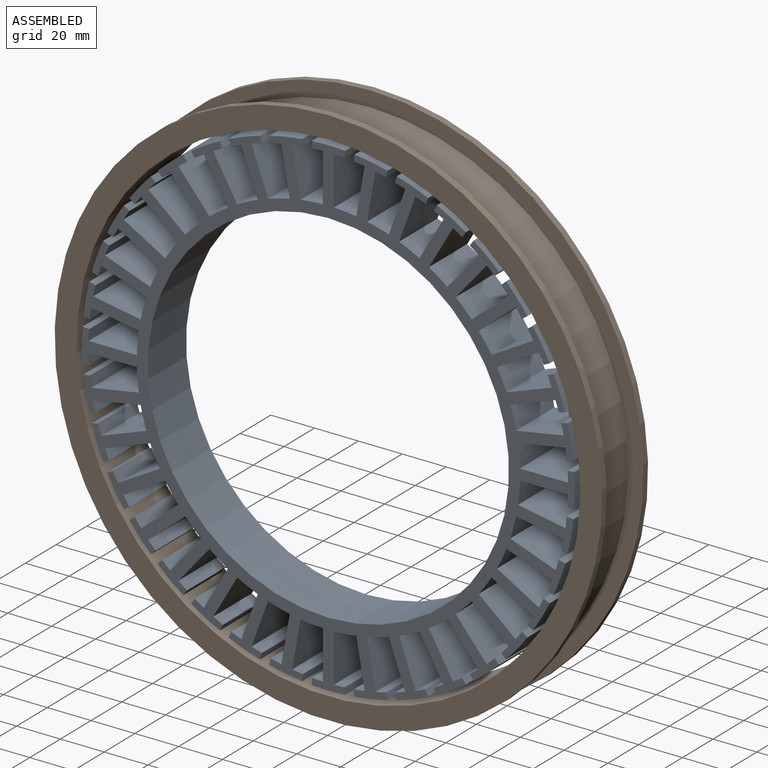
[diagram: assembled view]
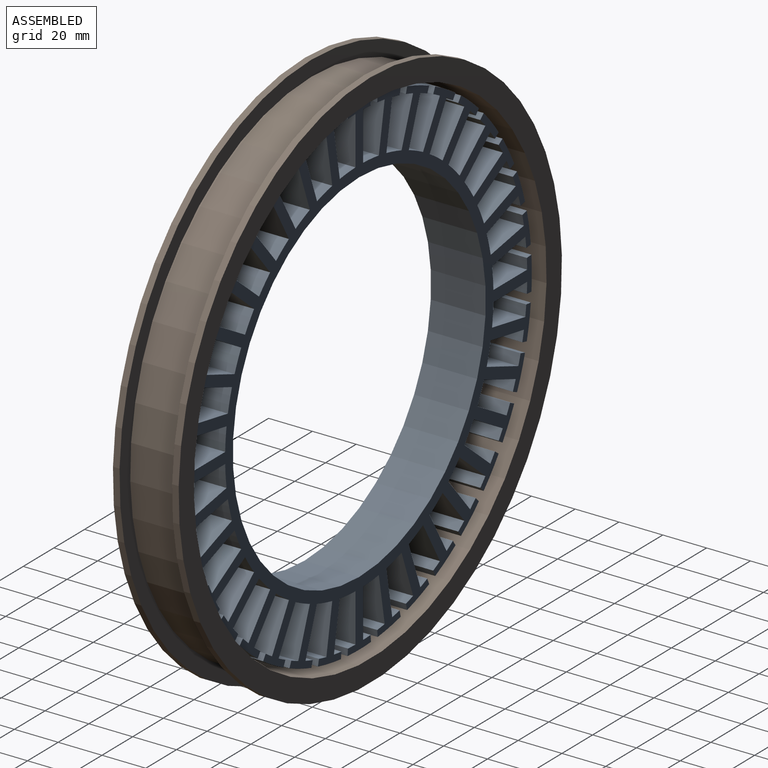
[diagram: assembled view, second angle]
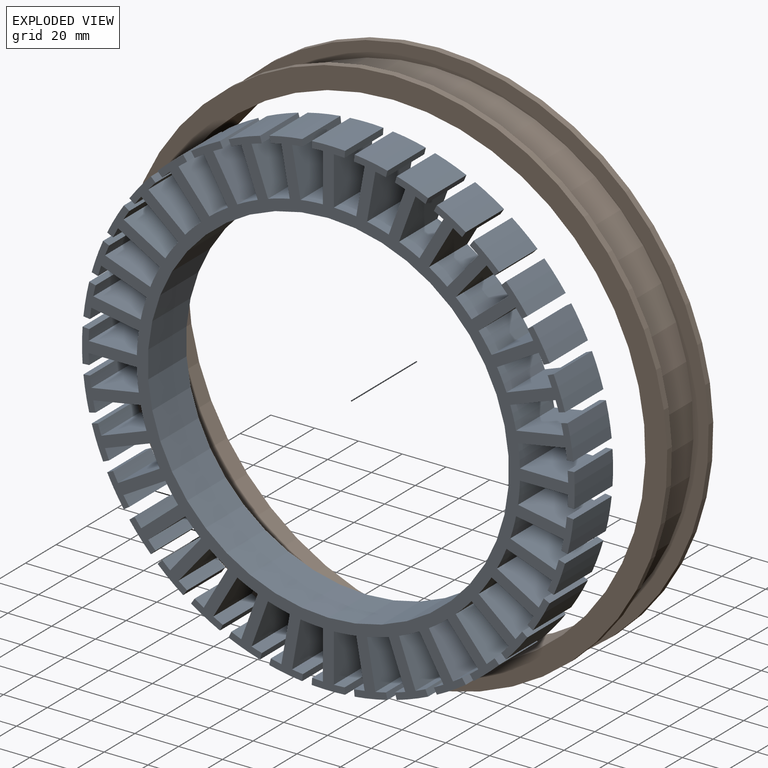
[diagram: exploded view]
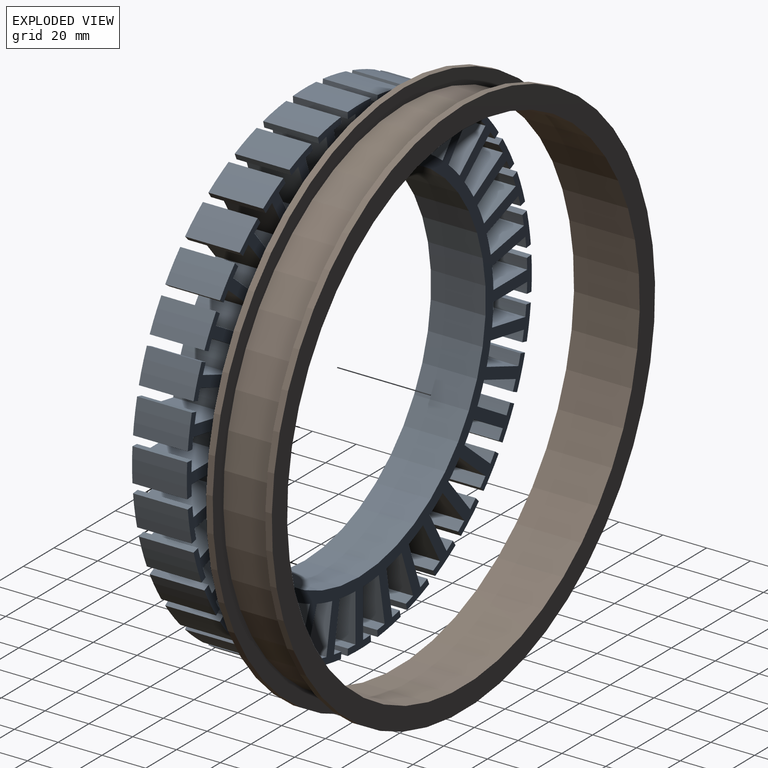
[diagram: exploded view, second angle]
ASSEMBLY  parts=2 mates=2
PART A: 291 faces, bbox 225x25x225 mm
  f0: cylinder r=87.5mm len=25mm, axis (0,1,0), area 256.8mm2, adj f1,f10,f11,f290
  f1: plane 25x22.01mm, normal (1,0,0), area 550.2mm2, adj f0,f2,f10,f11
  f2: cylinder r=109.5mm len=25mm, axis (0,1,0), area 123.2mm2, adj f1,f3,f10,f11
  f3: plane 25x2.99mm, normal (1,0,-0.07), area 75mm2, adj f2,f4,f10,f11
  f4: cylinder r=112.5mm len=25mm, axis (0,1,0), area 381.6mm2, adj f3,f5,f10,f11
  f5: plane 25x2.99mm, normal (-1,0,-0.07), area 75mm2, adj f4,f6,f10,f11
  f6: cylinder r=109.5mm len=25mm, axis (0,1,0), area 123.2mm2, adj f5,f7,f10,f11
  f7: plane 25x22.01mm, normal (-1,0,0), area 550.2mm2, adj f6,f8,f10,f11
  f8: cylinder r=87.5mm len=25mm, axis (0,1,0), area 256.8mm2, adj f7,f10,f11,f12
  f9: cylinder r=82.5mm len=165mm, axis (0,1,0), area 12959.1mm2, adj f10,f11
  f10: plane 225x225mm, normal (0,-1,0), area 8257.3mm2, adj f0,f1,f2,f3,f4,f5,f6,f7
  f11: plane 225x225mm, normal (0,1,0), area 8257.3mm2, adj f0,f1,f2,f3,f4,f5,f6,f7
  f12: plane 25x21.67mm, normal (0.98,0,0.17), area 550.2mm2, adj f8,f10,f11,f13
  f13: cylinder r=109.5mm len=25mm, axis (0,1,0), area 123.2mm2, adj f10,f11,f12,f14
  f14: plane 25x2.98mm, normal (0.99,0,0.11), area 75mm2, adj f10,f11,f13,f15
  f15: cylinder r=112.5mm len=25mm, axis (0,1,0), area 381.6mm2, adj f10,f11,f14,f16
  f16: plane 25x2.91mm, normal (-0.97,0,-0.24), area 75mm2, adj f10,f11,f15,f17
  f17: cylinder r=109.5mm len=25mm, axis (0,1,0), area 123.2mm2, adj f10,f11,f16,f18
  f18: plane 25x21.67mm, normal (-0.98,0,-0.17), area 550.2mm2, adj f10,f11,f17,f19
  f19: cylinder r=87.5mm len=25mm, axis (0,1,0), area 256.8mm2, adj f10,f11,f18,f20
  f20: plane 25x20.68mm, normal (0.94,0,0.34), area 550.2mm2, adj f10,f11,f19,f21
  f21: cylinder r=109.5mm len=25mm, axis (0,1,0), area 123.2mm2, adj f10,f11,f20,f22
  f22: plane 25x2.88mm, normal (0.96,0,0.28), area 75mm2, adj f10,f11,f21,f23
  f23: cylinder r=112.5mm len=25mm, axis (0,1,0), area 381.6mm2, adj f10,f11,f22,f24
  f24: plane 25x2.74mm, normal (-0.91,0,-0.4), area 75mm2, adj f10,f11,f23,f25
  f25: cylinder r=109.5mm len=25mm, axis (0,1,0), area 123.2mm2, adj f10,f11,f24,f26
  f26: plane 25x20.68mm, normal (-0.94,0,-0.34), area 550.2mm2, adj f10,f11,f25,f27
  f27: cylinder r=87.5mm len=25mm, axis (0,1,0), area 256.8mm2, adj f10,f11,f26,f28
  f28: plane 25x19.06mm, normal (0.87,0,0.5), area 550.2mm2, adj f10,f11,f27,f29
  f29: cylinder r=109.5mm len=25mm, axis (0,1,0), area 123.2mm2, adj f10,f11,f28,f30
  f30: plane 25x2.69mm, normal (0.9,0,0.44), area 75mm2, adj f10,f11,f29,f31
  f31: cylinder r=112.5mm len=25mm, axis (0,1,0), area 381.6mm2, adj f10,f11,f30,f32
  f32: plane 25x2.49mm, normal (-0.83,0,-0.56), area 75mm2, adj f10,f11,f31,f33
  f33: cylinder r=109.5mm len=25mm, axis (0,1,0), area 123.2mm2, adj f10,f11,f32,f34
  f34: plane 25x19.06mm, normal (-0.87,0,-0.5), area 550.2mm2, adj f10,f11,f33,f35
  f35: cylinder r=87.5mm len=25mm, axis (0,1,0), area 256.8mm2, adj f10,f11,f34,f36
  f36: plane 25x16.86mm, normal (0.77,0,0.64), area 550.2mm2, adj f10,f11,f35,f37
  f37: cylinder r=109.5mm len=25mm, axis (0,1,0), area 123.2mm2, adj f10,f11,f36,f38
  f38: plane 25x2.42mm, normal (0.81,0,0.59), area 75mm2, adj f10,f11,f37,f39
  f39: cylinder r=112.5mm len=25mm, axis (0,1,0), area 381.6mm2, adj f10,f11,f38,f40
  f40: plane 25x2.16mm, normal (-0.72,0,-0.69), area 75mm2, adj f10,f11,f39,f41
  f41: cylinder r=109.5mm len=25mm, axis (0,1,0), area 123.2mm2, adj f10,f11,f40,f42
  f42: plane 25x16.86mm, normal (-0.77,0,-0.64), area 550.2mm2, adj f10,f11,f41,f43
  f43: cylinder r=87.5mm len=25mm, axis (0,1,0), area 256.8mm2, adj f10,f11,f42,f44
  f44: plane 25x16.86mm, normal (0.64,0,0.77), area 550.2mm2, adj f10,f11,f43,f45
  f45: cylinder r=109.5mm len=25mm, axis (0,1,0), area 123.2mm2, adj f10,f11,f44,f46
  f46: plane 25x2.16mm, normal (0.69,0,0.72), area 75mm2, adj f10,f11,f45,f47
  f47: cylinder r=112.5mm len=25mm, axis (0,1,0), area 381.6mm2, adj f10,f11,f46,f48
  f48: plane 25x2.42mm, normal (-0.59,0,-0.81), area 75mm2, adj f10,f11,f47,f49
  f49: cylinder r=109.5mm len=25mm, axis (0,1,0), area 123.2mm2, adj f10,f11,f48,f50
  f50: plane 25x16.86mm, normal (-0.64,0,-0.77), area 550.2mm2, adj f10,f11,f49,f51
  f51: cylinder r=87.5mm len=25mm, axis (0,1,0), area 256.8mm2, adj f10,f11,f50,f52
  f52: plane 25x19.06mm, normal (0.5,0,0.87), area 550.2mm2, adj f10,f11,f51,f53
  f53: cylinder r=109.5mm len=25mm, axis (0,1,0), area 123.2mm2, adj f10,f11,f52,f54
  f54: plane 25x2.49mm, normal (0.56,0,0.83), area 75mm2, adj f10,f11,f53,f55
  f55: cylinder r=112.5mm len=25mm, axis (0,1,0), area 381.6mm2, adj f10,f11,f54,f56
  f56: plane 25x2.69mm, normal (-0.44,0,-0.9), area 75mm2, adj f10,f11,f55,f57
  f57: cylinder r=109.5mm len=25mm, axis (0,1,0), area 123.2mm2, adj f10,f11,f56,f58
  f58: plane 25x19.06mm, normal (-0.5,0,-0.87), area 550.2mm2, adj f10,f11,f57,f59
  f59: cylinder r=87.5mm len=25mm, axis (0,1,0), area 256.8mm2, adj f10,f11,f58,f60
  f60: plane 25x20.68mm, normal (0.34,0,0.94), area 550.2mm2, adj f10,f11,f59,f61
  f61: cylinder r=109.5mm len=25mm, axis (0,1,0), area 123.2mm2, adj f10,f11,f60,f62
  f62: plane 25x2.74mm, normal (0.4,0,0.91), area 75mm2, adj f10,f11,f61,f63
  f63: cylinder r=112.5mm len=25mm, axis (0,1,0), area 381.6mm2, adj f10,f11,f62,f64
  f64: plane 25x2.88mm, normal (-0.28,0,-0.96), area 75mm2, adj f10,f11,f63,f65
  f65: cylinder r=109.5mm len=25mm, axis (0,1,0), area 123.2mm2, adj f10,f11,f64,f66
  f66: plane 25x20.68mm, normal (-0.34,0,-0.94), area 550.2mm2, adj f10,f11,f65,f67
  f67: cylinder r=87.5mm len=25mm, axis (0,1,0), area 256.8mm2, adj f10,f11,f66,f68
  f68: plane 25x21.67mm, normal (0.17,0,0.98), area 550.2mm2, adj f10,f11,f67,f69
  f69: cylinder r=109.5mm len=25mm, axis (0,1,0), area 123.2mm2, adj f10,f11,f68,f70
  f70: plane 25x2.91mm, normal (0.24,0,0.97), area 75mm2, adj f10,f11,f69,f71
  f71: cylinder r=112.5mm len=25mm, axis (0,1,0), area 381.6mm2, adj f10,f11,f70,f72
  f72: plane 25x2.98mm, normal (-0.11,0,-0.99), area 75mm2, adj f10,f11,f71,f73
  f73: cylinder r=109.5mm len=25mm, axis (0,1,0), area 123.2mm2, adj f10,f11,f72,f74
  f74: plane 25x21.67mm, normal (-0.17,0,-0.98), area 550.2mm2, adj f10,f11,f73,f75
  f75: cylinder r=87.5mm len=25mm, axis (0,1,0), area 256.8mm2, adj f10,f11,f74,f76
  f76: plane 25x22.01mm, normal (0,0,1), area 550.2mm2, adj f10,f11,f75,f77
  f77: cylinder r=109.5mm len=25mm, axis (0,1,0), area 123.2mm2, adj f10,f11,f76,f78
  f78: plane 25x2.99mm, normal (0.07,0,1), area 75mm2, adj f10,f11,f77,f79
  f79: cylinder r=112.5mm len=25mm, axis (0,1,0), area 381.6mm2, adj f10,f11,f78,f80
  f80: plane 25x2.99mm, normal (0.07,0,-1), area 75mm2, adj f10,f11,f79,f81
  f81: cylinder r=109.5mm len=25mm, axis (0,1,0), area 123.2mm2, adj f10,f11,f80,f82
  f82: plane 25x22.01mm, normal (0,0,-1), area 550.2mm2, adj f10,f11,f81,f83
  f83: cylinder r=87.5mm len=25mm, axis (0,1,0), area 256.8mm2, adj f10,f11,f82,f84
  f84: plane 25x21.67mm, normal (-0.17,0,0.98), area 550.2mm2, adj f10,f11,f83,f85
  f85: cylinder r=109.5mm len=25mm, axis (0,1,0), area 123.2mm2, adj f10,f11,f84,f86
  f86: plane 25x2.98mm, normal (-0.11,0,0.99), area 75mm2, adj f10,f11,f85,f87
  f87: cylinder r=112.5mm len=25mm, axis (0,1,0), area 381.6mm2, adj f10,f11,f86,f88
  f88: plane 25x2.91mm, normal (0.24,0,-0.97), area 75mm2, adj f10,f11,f87,f89
  f89: cylinder r=109.5mm len=25mm, axis (0,1,0), area 123.2mm2, adj f10,f11,f88,f90
  f90: plane 25x21.67mm, normal (0.17,0,-0.98), area 550.2mm2, adj f10,f11,f89,f91
  f91: cylinder r=87.5mm len=25mm, axis (0,1,0), area 256.8mm2, adj f10,f11,f90,f92
  f92: plane 25x20.68mm, normal (-0.34,0,0.94), area 550.2mm2, adj f10,f11,f91,f93
  f93: cylinder r=109.5mm len=25mm, axis (0,1,0), area 123.2mm2, adj f10,f11,f92,f94
  f94: plane 25x2.88mm, normal (-0.28,0,0.96), area 75mm2, adj f10,f11,f93,f95
  f95: cylinder r=112.5mm len=25mm, axis (0,1,0), area 381.6mm2, adj f10,f11,f94,f96
  f96: plane 25x2.74mm, normal (0.4,0,-0.91), area 75mm2, adj f10,f11,f95,f97
  f97: cylinder r=109.5mm len=25mm, axis (0,1,0), area 123.2mm2, adj f10,f11,f96,f98
  f98: plane 25x20.68mm, normal (0.34,0,-0.94), area 550.2mm2, adj f10,f11,f97,f99
  f99: cylinder r=87.5mm len=25mm, axis (0,1,0), area 256.8mm2, adj f10,f11,f98,f100
  f100: plane 25x19.06mm, normal (-0.5,0,0.87), area 550.2mm2, adj f10,f11,f99,f101
  f101: cylinder r=109.5mm len=25mm, axis (0,1,0), area 123.2mm2, adj f10,f11,f100,f102
  f102: plane 25x2.69mm, normal (-0.44,0,0.9), area 75mm2, adj f10,f11,f101,f103
  f103: cylinder r=112.5mm len=25mm, axis (0,1,0), area 381.6mm2, adj f10,f11,f102,f104
  f104: plane 25x2.49mm, normal (0.56,0,-0.83), area 75mm2, adj f10,f11,f103,f105
  f105: cylinder r=109.5mm len=25mm, axis (0,1,0), area 123.2mm2, adj f10,f11,f104,f106
  f106: plane 25x19.06mm, normal (0.5,0,-0.87), area 550.2mm2, adj f10,f11,f105,f107
  f107: cylinder r=87.5mm len=25mm, axis (0,1,0), area 256.8mm2, adj f10,f11,f106,f108
  f108: plane 25x16.86mm, normal (-0.64,0,0.77), area 550.2mm2, adj f10,f11,f107,f109
  f109: cylinder r=109.5mm len=25mm, axis (0,1,0), area 123.2mm2, adj f10,f11,f108,f110
  f110: plane 25x2.42mm, normal (-0.59,0,0.81), area 75mm2, adj f10,f11,f109,f111
  f111: cylinder r=112.5mm len=25mm, axis (0,1,0), area 381.6mm2, adj f10,f11,f110,f112
  f112: plane 25x2.16mm, normal (0.69,0,-0.72), area 75mm2, adj f10,f11,f111,f113
  f113: cylinder r=109.5mm len=25mm, axis (0,1,0), area 123.2mm2, adj f10,f11,f112,f114
  f114: plane 25x16.86mm, normal (0.64,0,-0.77), area 550.2mm2, adj f10,f11,f113,f115
  f115: cylinder r=87.5mm len=25mm, axis (0,1,0), area 256.8mm2, adj f10,f11,f114,f116
  f116: plane 25x16.86mm, normal (-0.77,0,0.64), area 550.2mm2, adj f10,f11,f115,f117
  f117: cylinder r=109.5mm len=25mm, axis (0,1,0), area 123.2mm2, adj f10,f11,f116,f118
  f118: plane 25x2.16mm, normal (-0.72,0,0.69), area 75mm2, adj f10,f11,f117,f119
  f119: cylinder r=112.5mm len=25mm, axis (0,1,0), area 381.6mm2, adj f10,f11,f118,f120
  f120: plane 25x2.42mm, normal (0.81,0,-0.59), area 75mm2, adj f10,f11,f119,f121
  f121: cylinder r=109.5mm len=25mm, axis (0,1,0), area 123.2mm2, adj f10,f11,f120,f122
  f122: plane 25x16.86mm, normal (0.77,0,-0.64), area 550.2mm2, adj f10,f11,f121,f123
  f123: cylinder r=87.5mm len=25mm, axis (0,1,0), area 256.8mm2, adj f10,f11,f122,f124
  f124: plane 25x19.06mm, normal (-0.87,0,0.5), area 550.2mm2, adj f10,f11,f123,f125
  f125: cylinder r=109.5mm len=25mm, axis (0,1,0), area 123.2mm2, adj f10,f11,f124,f126
  f126: plane 25x2.49mm, normal (-0.83,0,0.56), area 75mm2, adj f10,f11,f125,f127
  f127: cylinder r=112.5mm len=25mm, axis (0,1,0), area 381.6mm2, adj f10,f11,f126,f128
  f128: plane 25x2.69mm, normal (0.9,0,-0.44), area 75mm2, adj f10,f11,f127,f129
  f129: cylinder r=109.5mm len=25mm, axis (0,1,0), area 123.2mm2, adj f10,f11,f128,f130
  f130: plane 25x19.06mm, normal (0.87,0,-0.5), area 550.2mm2, adj f10,f11,f129,f131
  f131: cylinder r=87.5mm len=25mm, axis (0,1,0), area 256.8mm2, adj f10,f11,f130,f132
  f132: plane 25x20.68mm, normal (-0.94,0,0.34), area 550.2mm2, adj f10,f11,f131,f133
  f133: cylinder r=109.5mm len=25mm, axis (0,1,0), area 123.2mm2, adj f10,f11,f132,f134
  f134: plane 25x2.74mm, normal (-0.91,0,0.4), area 75mm2, adj f10,f11,f133,f135
  f135: cylinder r=112.5mm len=25mm, axis (0,1,0), area 381.6mm2, adj f10,f11,f134,f136
  f136: plane 25x2.88mm, normal (0.96,0,-0.28), area 75mm2, adj f10,f11,f135,f137
  f137: cylinder r=109.5mm len=25mm, axis (0,1,0), area 123.2mm2, adj f10,f11,f136,f138
  f138: plane 25x20.68mm, normal (0.94,0,-0.34), area 550.2mm2, adj f10,f11,f137,f139
  f139: cylinder r=87.5mm len=25mm, axis (0,1,0), area 256.8mm2, adj f10,f11,f138,f140
  f140: plane 25x21.67mm, normal (-0.98,0,0.17), area 550.2mm2, adj f10,f11,f139,f141
  f141: cylinder r=109.5mm len=25mm, axis (0,1,0), area 123.2mm2, adj f10,f11,f140,f142
  f142: plane 25x2.91mm, normal (-0.97,0,0.24), area 75mm2, adj f10,f11,f141,f143
  f143: cylinder r=112.5mm len=25mm, axis (0,1,0), area 381.6mm2, adj f10,f11,f142,f144
  f144: plane 25x2.98mm, normal (0.99,0,-0.11), area 75mm2, adj f10,f11,f143,f145
  f145: cylinder r=109.5mm len=25mm, axis (0,1,0), area 123.2mm2, adj f10,f11,f144,f146
  f146: plane 25x21.67mm, normal (0.98,0,-0.17), area 550.2mm2, adj f10,f11,f145,f147
  f147: cylinder r=87.5mm len=25mm, axis (0,1,0), area 256.8mm2, adj f10,f11,f146,f148
  f148: plane 25x22.01mm, normal (-1,0,0), area 550.2mm2, adj f10,f11,f147,f149
  f149: cylinder r=109.5mm len=25mm, axis (0,1,0), area 123.2mm2, adj f10,f11,f148,f150
  f150: plane 25x2.99mm, normal (-1,0,0.07), area 75mm2, adj f10,f11,f149,f151
  f151: cylinder r=112.5mm len=25mm, axis (0,1,0), area 381.6mm2, adj f10,f11,f150,f152
  f152: plane 25x2.99mm, normal (1,0,0.07), area 75mm2, adj f10,f11,f151,f153
  f153: cylinder r=109.5mm len=25mm, axis (0,1,0), area 123.2mm2, adj f10,f11,f152,f154
  f154: plane 25x22.01mm, normal (1,0,0), area 550.2mm2, adj f10,f11,f153,f155
  f155: cylinder r=87.5mm len=25mm, axis (0,1,0), area 256.8mm2, adj f10,f11,f154,f156
  f156: plane 25x21.67mm, normal (-0.98,0,-0.17), area 550.2mm2, adj f10,f11,f155,f157
  f157: cylinder r=109.5mm len=25mm, axis (0,1,0), area 123.2mm2, adj f10,f11,f156,f158
  f158: plane 25x2.98mm, normal (-0.99,0,-0.11), area 75mm2, adj f10,f11,f157,f159
  f159: cylinder r=112.5mm len=25mm, axis (0,1,0), area 381.6mm2, adj f10,f11,f158,f160
  f160: plane 25x2.91mm, normal (0.97,0,0.24), area 75mm2, adj f10,f11,f159,f161
  f161: cylinder r=109.5mm len=25mm, axis (0,1,0), area 123.2mm2, adj f10,f11,f160,f162
  f162: plane 25x21.67mm, normal (0.98,0,0.17), area 550.2mm2, adj f10,f11,f161,f163
  f163: cylinder r=87.5mm len=25mm, axis (0,1,0), area 256.8mm2, adj f10,f11,f162,f164
  f164: plane 25x20.68mm, normal (-0.94,0,-0.34), area 550.2mm2, adj f10,f11,f163,f165
  f165: cylinder r=109.5mm len=25mm, axis (0,1,0), area 123.2mm2, adj f10,f11,f164,f166
  f166: plane 25x2.88mm, normal (-0.96,0,-0.28), area 75mm2, adj f10,f11,f165,f167
  f167: cylinder r=112.5mm len=25mm, axis (0,1,0), area 381.6mm2, adj f10,f11,f166,f168
  f168: plane 25x2.74mm, normal (0.91,0,0.4), area 75mm2, adj f10,f11,f167,f169
  f169: cylinder r=109.5mm len=25mm, axis (0,1,0), area 123.2mm2, adj f10,f11,f168,f170
  f170: plane 25x20.68mm, normal (0.94,0,0.34), area 550.2mm2, adj f10,f11,f169,f171
  f171: cylinder r=87.5mm len=25mm, axis (0,1,0), area 256.8mm2, adj f10,f11,f170,f172
  f172: plane 25x19.06mm, normal (-0.87,0,-0.5), area 550.2mm2, adj f10,f11,f171,f173
  f173: cylinder r=109.5mm len=25mm, axis (0,1,0), area 123.2mm2, adj f10,f11,f172,f174
  f174: plane 25x2.69mm, normal (-0.9,0,-0.44), area 75mm2, adj f10,f11,f173,f175
  f175: cylinder r=112.5mm len=25mm, axis (0,1,0), area 381.6mm2, adj f10,f11,f174,f176
  f176: plane 25x2.49mm, normal (0.83,0,0.56), area 75mm2, adj f10,f11,f175,f177
  f177: cylinder r=109.5mm len=25mm, axis (0,1,0), area 123.2mm2, adj f10,f11,f176,f178
  f178: plane 25x19.06mm, normal (0.87,0,0.5), area 550.2mm2, adj f10,f11,f177,f179
  f179: cylinder r=87.5mm len=25mm, axis (0,1,0), area 256.8mm2, adj f10,f11,f178,f180
  f180: plane 25x16.86mm, normal (-0.77,0,-0.64), area 550.2mm2, adj f10,f11,f179,f181
  f181: cylinder r=109.5mm len=25mm, axis (0,1,0), area 123.2mm2, adj f10,f11,f180,f182
  f182: plane 25x2.42mm, normal (-0.81,0,-0.59), area 75mm2, adj f10,f11,f181,f183
  f183: cylinder r=112.5mm len=25mm, axis (0,1,0), area 381.6mm2, adj f10,f11,f182,f184
  f184: plane 25x2.16mm, normal (0.72,0,0.69), area 75mm2, adj f10,f11,f183,f185
  f185: cylinder r=109.5mm len=25mm, axis (0,1,0), area 123.2mm2, adj f10,f11,f184,f186
  f186: plane 25x16.86mm, normal (0.77,0,0.64), area 550.2mm2, adj f10,f11,f185,f187
  f187: cylinder r=87.5mm len=25mm, axis (0,1,0), area 256.8mm2, adj f10,f11,f186,f188
  f188: plane 25x16.86mm, normal (-0.64,0,-0.77), area 550.2mm2, adj f10,f11,f187,f189
  f189: cylinder r=109.5mm len=25mm, axis (0,1,0), area 123.2mm2, adj f10,f11,f188,f190
  f190: plane 25x2.16mm, normal (-0.69,0,-0.72), area 75mm2, adj f10,f11,f189,f191
  f191: cylinder r=112.5mm len=25mm, axis (0,1,0), area 381.6mm2, adj f10,f11,f190,f192
  f192: plane 25x2.42mm, normal (0.59,0,0.81), area 75mm2, adj f10,f11,f191,f193
  f193: cylinder r=109.5mm len=25mm, axis (0,1,0), area 123.2mm2, adj f10,f11,f192,f194
  f194: plane 25x16.86mm, normal (0.64,0,0.77), area 550.2mm2, adj f10,f11,f193,f195
  f195: cylinder r=87.5mm len=25mm, axis (0,1,0), area 256.8mm2, adj f10,f11,f194,f196
  f196: plane 25x19.06mm, normal (-0.5,0,-0.87), area 550.2mm2, adj f10,f11,f195,f197
  f197: cylinder r=109.5mm len=25mm, axis (0,1,0), area 123.2mm2, adj f10,f11,f196,f198
  f198: plane 25x2.49mm, normal (-0.56,0,-0.83), area 75mm2, adj f10,f11,f197,f199
  f199: cylinder r=112.5mm len=25mm, axis (0,1,0), area 381.6mm2, adj f10,f11,f198,f200
  f200: plane 25x2.69mm, normal (0.44,0,0.9), area 75mm2, adj f10,f11,f199,f201
  f201: cylinder r=109.5mm len=25mm, axis (0,1,0), area 123.2mm2, adj f10,f11,f200,f202
  f202: plane 25x19.06mm, normal (0.5,0,0.87), area 550.2mm2, adj f10,f11,f201,f203
  f203: cylinder r=87.5mm len=25mm, axis (0,1,0), area 256.8mm2, adj f10,f11,f202,f204
  f204: plane 25x20.68mm, normal (-0.34,0,-0.94), area 550.2mm2, adj f10,f11,f203,f205
  f205: cylinder r=109.5mm len=25mm, axis (0,1,0), area 123.2mm2, adj f10,f11,f204,f206
  f206: plane 25x2.74mm, normal (-0.4,0,-0.91), area 75mm2, adj f10,f11,f205,f207
  f207: cylinder r=112.5mm len=25mm, axis (0,1,0), area 381.6mm2, adj f10,f11,f206,f208
  f208: plane 25x2.88mm, normal (0.28,0,0.96), area 75mm2, adj f10,f11,f207,f209
  f209: cylinder r=109.5mm len=25mm, axis (0,1,0), area 123.2mm2, adj f10,f11,f208,f210
  f210: plane 25x20.68mm, normal (0.34,0,0.94), area 550.2mm2, adj f10,f11,f209,f211
  f211: cylinder r=87.5mm len=25mm, axis (0,1,0), area 256.8mm2, adj f10,f11,f210,f212
  f212: plane 25x21.67mm, normal (-0.17,0,-0.98), area 550.2mm2, adj f10,f11,f211,f213
  f213: cylinder r=109.5mm len=25mm, axis (0,1,0), area 123.2mm2, adj f10,f11,f212,f214
  f214: plane 25x2.91mm, normal (-0.24,0,-0.97), area 75mm2, adj f10,f11,f213,f215
  f215: cylinder r=112.5mm len=25mm, axis (0,1,0), area 381.6mm2, adj f10,f11,f214,f216
  f216: plane 25x2.98mm, normal (0.11,0,0.99), area 75mm2, adj f10,f11,f215,f217
  f217: cylinder r=109.5mm len=25mm, axis (0,1,0), area 123.2mm2, adj f10,f11,f216,f218
  f218: plane 25x21.67mm, normal (0.17,0,0.98), area 550.2mm2, adj f10,f11,f217,f219
  f219: cylinder r=87.5mm len=25mm, axis (0,1,0), area 256.8mm2, adj f10,f11,f218,f220
  f220: plane 25x22.01mm, normal (0,0,-1), area 550.2mm2, adj f10,f11,f219,f221
  f221: cylinder r=109.5mm len=25mm, axis (0,1,0), area 123.2mm2, adj f10,f11,f220,f222
  f222: plane 25x2.99mm, normal (-0.07,0,-1), area 75mm2, adj f10,f11,f221,f223
  f223: cylinder r=112.5mm len=25mm, axis (0,1,0), area 381.6mm2, adj f10,f11,f222,f224
  f224: plane 25x2.99mm, normal (-0.07,0,1), area 75mm2, adj f10,f11,f223,f225
  f225: cylinder r=109.5mm len=25mm, axis (0,1,0), area 123.2mm2, adj f10,f11,f224,f226
  f226: plane 25x22.01mm, normal (0,0,1), area 550.2mm2, adj f10,f11,f225,f227
  f227: cylinder r=87.5mm len=25mm, axis (0,1,0), area 256.8mm2, adj f10,f11,f226,f228
  f228: plane 25x21.67mm, normal (0.17,0,-0.98), area 550.2mm2, adj f10,f11,f227,f229
  f229: cylinder r=109.5mm len=25mm, axis (0,1,0), area 123.2mm2, adj f10,f11,f228,f230
  f230: plane 25x2.98mm, normal (0.11,0,-0.99), area 75mm2, adj f10,f11,f229,f231
  f231: cylinder r=112.5mm len=25mm, axis (0,1,0), area 381.6mm2, adj f10,f11,f230,f232
  f232: plane 25x2.91mm, normal (-0.24,0,0.97), area 75mm2, adj f10,f11,f231,f233
  f233: cylinder r=109.5mm len=25mm, axis (0,1,0), area 123.2mm2, adj f10,f11,f232,f234
  f234: plane 25x21.67mm, normal (-0.17,0,0.98), area 550.2mm2, adj f10,f11,f233,f235
  f235: cylinder r=87.5mm len=25mm, axis (0,1,0), area 256.8mm2, adj f10,f11,f234,f236
  f236: plane 25x20.68mm, normal (0.34,0,-0.94), area 550.2mm2, adj f10,f11,f235,f237
  f237: cylinder r=109.5mm len=25mm, axis (0,1,0), area 123.2mm2, adj f10,f11,f236,f238
  f238: plane 25x2.88mm, normal (0.28,0,-0.96), area 75mm2, adj f10,f11,f237,f239
  f239: cylinder r=112.5mm len=25mm, axis (0,1,0), area 381.6mm2, adj f10,f11,f238,f240
  f240: plane 25x2.74mm, normal (-0.4,0,0.91), area 75mm2, adj f10,f11,f239,f241
  f241: cylinder r=109.5mm len=25mm, axis (0,1,0), area 123.2mm2, adj f10,f11,f240,f242
  f242: plane 25x20.68mm, normal (-0.34,0,0.94), area 550.2mm2, adj f10,f11,f241,f243
  f243: cylinder r=87.5mm len=25mm, axis (0,1,0), area 256.8mm2, adj f10,f11,f242,f244
  f244: plane 25x19.06mm, normal (0.5,0,-0.87), area 550.2mm2, adj f10,f11,f243,f245
  f245: cylinder r=109.5mm len=25mm, axis (0,1,0), area 123.2mm2, adj f10,f11,f244,f246
  f246: plane 25x2.69mm, normal (0.44,0,-0.9), area 75mm2, adj f10,f11,f245,f247
  f247: cylinder r=112.5mm len=25mm, axis (0,1,0), area 381.6mm2, adj f10,f11,f246,f248
  f248: plane 25x2.49mm, normal (-0.56,0,0.83), area 75mm2, adj f10,f11,f247,f249
  f249: cylinder r=109.5mm len=25mm, axis (0,1,0), area 123.2mm2, adj f10,f11,f248,f250
  f250: plane 25x19.06mm, normal (-0.5,0,0.87), area 550.2mm2, adj f10,f11,f249,f251
  f251: cylinder r=87.5mm len=25mm, axis (0,1,0), area 256.8mm2, adj f10,f11,f250,f252
  f252: plane 25x16.86mm, normal (0.64,0,-0.77), area 550.2mm2, adj f10,f11,f251,f253
  f253: cylinder r=109.5mm len=25mm, axis (0,1,0), area 123.2mm2, adj f10,f11,f252,f254
  f254: plane 25x2.42mm, normal (0.59,0,-0.81), area 75mm2, adj f10,f11,f253,f255
  f255: cylinder r=112.5mm len=25mm, axis (0,1,0), area 381.6mm2, adj f10,f11,f254,f256
  f256: plane 25x2.16mm, normal (-0.69,0,0.72), area 75mm2, adj f10,f11,f255,f257
  f257: cylinder r=109.5mm len=25mm, axis (0,1,0), area 123.2mm2, adj f10,f11,f256,f258
  f258: plane 25x16.86mm, normal (-0.64,0,0.77), area 550.2mm2, adj f10,f11,f257,f259
  f259: cylinder r=87.5mm len=25mm, axis (0,1,0), area 256.8mm2, adj f10,f11,f258,f260
  f260: plane 25x16.86mm, normal (0.77,0,-0.64), area 550.2mm2, adj f10,f11,f259,f261
  f261: cylinder r=109.5mm len=25mm, axis (0,1,0), area 123.2mm2, adj f10,f11,f260,f262
  f262: plane 25x2.16mm, normal (0.72,0,-0.69), area 75mm2, adj f10,f11,f261,f263
  f263: cylinder r=112.5mm len=25mm, axis (0,1,0), area 381.6mm2, adj f10,f11,f262,f264
  f264: plane 25x2.42mm, normal (-0.81,0,0.59), area 75mm2, adj f10,f11,f263,f265
  f265: cylinder r=109.5mm len=25mm, axis (0,1,0), area 123.2mm2, adj f10,f11,f264,f266
  f266: plane 25x16.86mm, normal (-0.77,0,0.64), area 550.2mm2, adj f10,f11,f265,f267
  f267: cylinder r=87.5mm len=25mm, axis (0,1,0), area 256.8mm2, adj f10,f11,f266,f268
  f268: plane 25x19.06mm, normal (0.87,0,-0.5), area 550.2mm2, adj f10,f11,f267,f269
  f269: cylinder r=109.5mm len=25mm, axis (0,1,0), area 123.2mm2, adj f10,f11,f268,f270
  f270: plane 25x2.49mm, normal (0.83,0,-0.56), area 75mm2, adj f10,f11,f269,f271
  f271: cylinder r=112.5mm len=25mm, axis (0,1,0), area 381.6mm2, adj f10,f11,f270,f272
  f272: plane 25x2.69mm, normal (-0.9,0,0.44), area 75mm2, adj f10,f11,f271,f273
  f273: cylinder r=109.5mm len=25mm, axis (0,1,0), area 123.2mm2, adj f10,f11,f272,f274
  f274: plane 25x19.06mm, normal (-0.87,0,0.5), area 550.2mm2, adj f10,f11,f273,f275
  f275: cylinder r=87.5mm len=25mm, axis (0,1,0), area 256.8mm2, adj f10,f11,f274,f276
  f276: plane 25x20.68mm, normal (0.94,0,-0.34), area 550.2mm2, adj f10,f11,f275,f277
  f277: cylinder r=109.5mm len=25mm, axis (0,1,0), area 123.2mm2, adj f10,f11,f276,f278
  f278: plane 25x2.74mm, normal (0.91,0,-0.4), area 75mm2, adj f10,f11,f277,f279
  f279: cylinder r=112.5mm len=25mm, axis (0,1,0), area 381.6mm2, adj f10,f11,f278,f280
  f280: plane 25x2.88mm, normal (-0.96,0,0.28), area 75mm2, adj f10,f11,f279,f281
  f281: cylinder r=109.5mm len=25mm, axis (0,1,0), area 123.2mm2, adj f10,f11,f280,f282
  f282: plane 25x20.68mm, normal (-0.94,0,0.34), area 550.2mm2, adj f10,f11,f281,f283
  f283: cylinder r=87.5mm len=25mm, axis (0,1,0), area 256.8mm2, adj f10,f11,f282,f284
  f284: plane 25x21.67mm, normal (0.98,0,-0.17), area 550.2mm2, adj f10,f11,f283,f285
  f285: cylinder r=109.5mm len=25mm, axis (0,1,0), area 123.2mm2, adj f10,f11,f284,f286
  f286: plane 25x2.91mm, normal (0.97,0,-0.24), area 75mm2, adj f10,f11,f285,f287
  f287: cylinder r=112.5mm len=25mm, axis (0,1,0), area 381.6mm2, adj f10,f11,f286,f288
  f288: plane 25x2.98mm, normal (-0.99,0,0.11), area 75mm2, adj f10,f11,f287,f289
  f289: cylinder r=109.5mm len=25mm, axis (0,1,0), area 123.2mm2, adj f10,f11,f288,f290
  f290: plane 25x21.67mm, normal (-0.98,0,0.17), area 550.2mm2, adj f0,f10,f11,f289
PART B: 8 faces, bbox 250x30x250 mm
  f0: cylinder r=125mm len=250mm, axis (0,1,0), area 2356.2mm2, adj f1,f7
  f1: plane 250x250mm, normal (0,-1,0), area 7539.8mm2, adj f0,f2
  f2: cylinder r=115mm len=230mm, axis (0,1,0), area 21677mm2, adj f1,f3
  f3: plane 250x250mm, normal (0,1,0), area 7539.8mm2, adj f2,f4
  f4: cylinder r=125mm len=250mm, axis (0,1,0), area 2356.2mm2, adj f3,f5
  f5: plane 250x250mm, normal (0,-1,0), area 5343.8mm2, adj f4,f6
  f6: cylinder r=118mm len=236mm, axis (0,1,0), area 17794mm2, adj f5,f7
  f7: plane 250x250mm, normal (0,1,0), area 5343.8mm2, adj f0,f6
PLACE A t=(-40.93,-13.16,19.46)mm
PLACE B t=(-40.93,-23.16,19.46)mm
MATE cylindrical B.f0 <-> A.f9  axis (0,1,0) through (-40.93,-23.16,19.46)mm
MATE planar A.f0 <-> B.f0  axis (0,-1,0) through (-40.93,-38.16,19.46)mm
